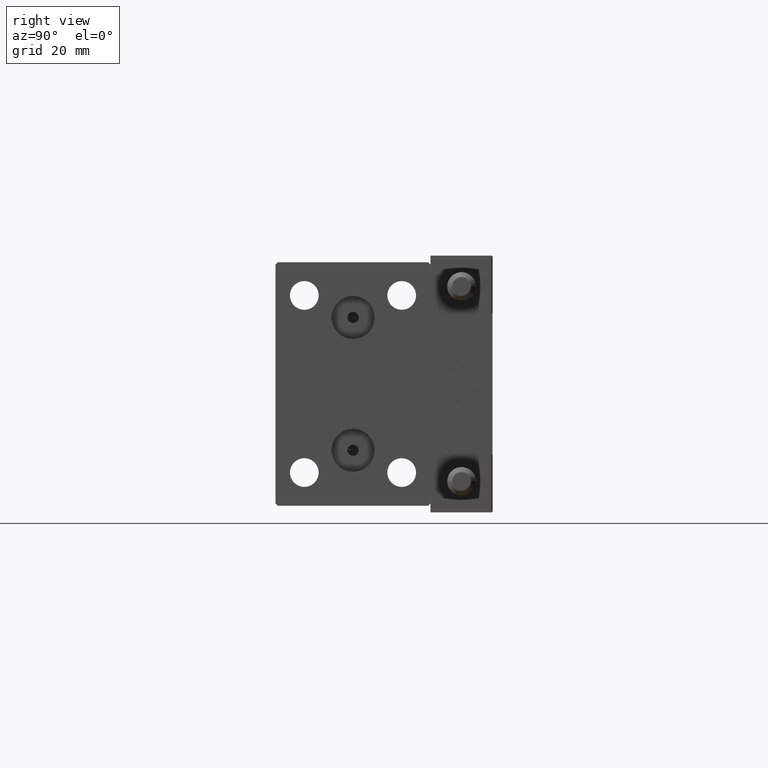
[diagram: clean part render]
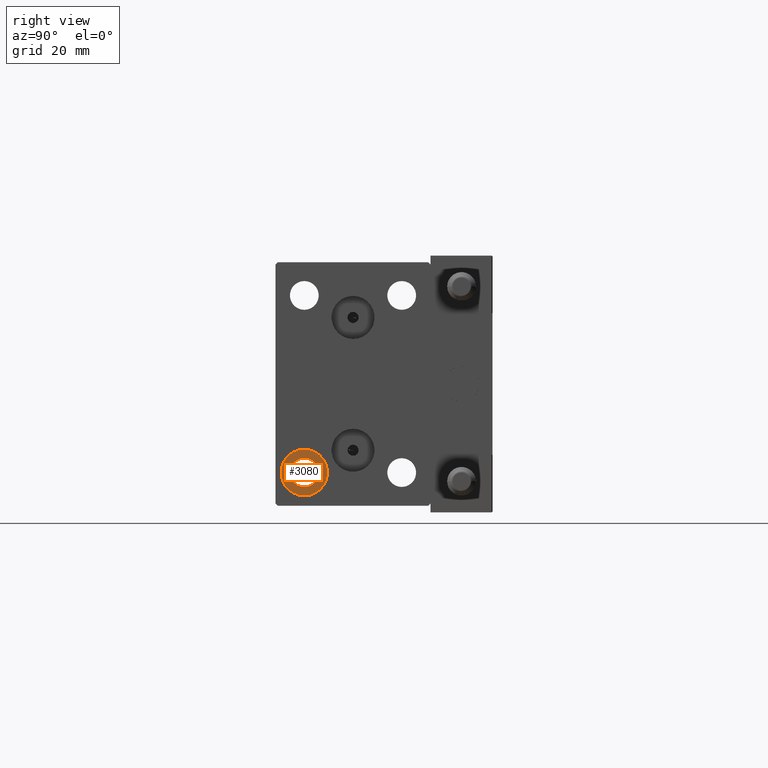
[diagram: same view with one face highlighted and labeled with its STEP entity id]
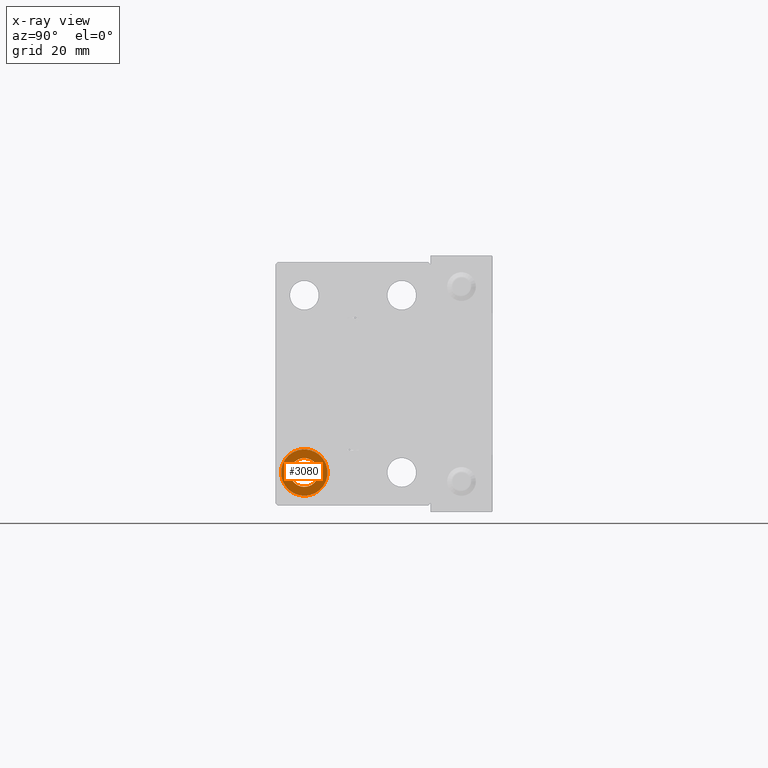
[diagram: x-ray of the same camera — body ghosted, the highlighted face saturated]
A machine part, right view. The second image highlights one B-rep face of the part: STEP entity #3080.
The next image is the same camera in x-ray: the body ghosted, the highlighted face saturated — about 0% of this face is hidden behind the body in this view.
In plain terms, the highlighted planar face has unit normal (1, 0, 0).
Its self-contained STEP definition (entity closure, byte-faithful):
#1016 = VERTEX_POINT ( 'NONE', #39724 ) ;
#1093 = CARTESIAN_POINT ( 'NONE',  ( 49.00000000000000000, -11.00000000000000355, -23.25000000000000000 ) ) ;
#3080 = ADVANCED_FACE ( 'NONE', ( #25425, #42501 ), #19011, .T. ) ;
#4328 = CARTESIAN_POINT ( 'NONE',  ( 49.00000000000000000, -11.00000000000000355, -16.75000000000000000 ) ) ;
#4848 = VERTEX_POINT ( 'NONE', #10594 ) ;
#5833 = CARTESIAN_POINT ( 'NONE',  ( 49.00000000000000000, -11.00000000000000355, -20.00000000000000000 ) ) ;
#5874 = EDGE_LOOP ( 'NONE', ( #13782, #13221 ) ) ;
#6592 = DIRECTION ( 'NONE',  ( 0.000000000000000000, 0.000000000000000000, -1.000000000000000000 ) ) ;
#7237 = DIRECTION ( 'NONE',  ( 1.000000000000000000, 0.000000000000000000, -0.000000000000000000 ) ) ;
#8002 = DIRECTION ( 'NONE',  ( 0.000000000000000000, 0.000000000000000000, 1.000000000000000000 ) ) ;
#8963 = AXIS2_PLACEMENT_3D ( 'NONE', #5833, #13496, #9412 ) ;
#9412 = DIRECTION ( 'NONE',  ( 0.000000000000000000, 0.000000000000000000, 1.000000000000000000 ) ) ;
#10414 = DIRECTION ( 'NONE',  ( -1.000000000000000000, -0.000000000000000000, -0.000000000000000000 ) ) ;
#10594 = CARTESIAN_POINT ( 'NONE',  ( 49.00000000000000000, -11.00000000000000355, -14.75000000000000000 ) ) ;
#10695 = CARTESIAN_POINT ( 'NONE',  ( 49.00000000000000000, -11.00000000000000355, -20.00000000000000000 ) ) ;
#12130 = EDGE_CURVE ( 'NONE', #34610, #20755, #22189, .T. ) ;
#12825 = AXIS2_PLACEMENT_3D ( 'NONE', #10695, #15033, #26288 ) ;
#13221 = ORIENTED_EDGE ( 'NONE', *, *, #25519, .T. ) ;
#13496 = DIRECTION ( 'NONE',  ( -1.000000000000000000, -0.000000000000000000, -0.000000000000000000 ) ) ;
#13782 = ORIENTED_EDGE ( 'NONE', *, *, #12130, .T. ) ;
#15033 = DIRECTION ( 'NONE',  ( -1.000000000000000000, -0.000000000000000000, -0.000000000000000000 ) ) ;
#18111 = CARTESIAN_POINT ( 'NONE',  ( 49.00000000000000000, -11.00000000000000355, -20.00000000000000000 ) ) ;
#19011 = PLANE ( 'NONE',  #44864 ) ;
#19386 = AXIS2_PLACEMENT_3D ( 'NONE', #19645, #35226, #31132 ) ;
#19645 = CARTESIAN_POINT ( 'NONE',  ( 49.00000000000000000, -11.00000000000000355, -20.00000000000000000 ) ) ;
#20391 = CIRCLE ( 'NONE', #8963, 5.250000000000000888 ) ;
#20755 = VERTEX_POINT ( 'NONE', #1093 ) ;
#22032 = EDGE_CURVE ( 'NONE', #1016, #4848, #37322, .T. ) ;
#22189 = CIRCLE ( 'NONE', #29538, 3.249999999999999556 ) ;
#25425 = FACE_OUTER_BOUND ( 'NONE', #31531, .T. ) ;
#25519 = EDGE_CURVE ( 'NONE', #20755, #34610, #46254, .T. ) ;
#26288 = DIRECTION ( 'NONE',  ( 0.000000000000000000, 0.000000000000000000, -1.000000000000000000 ) ) ;
#27663 = ORIENTED_EDGE ( 'NONE', *, *, #32166, .F. ) ;
#29538 = AXIS2_PLACEMENT_3D ( 'NONE', #18111, #10414, #6592 ) ;
#31132 = DIRECTION ( 'NONE',  ( 0.000000000000000000, 0.000000000000000000, 1.000000000000000000 ) ) ;
#31531 = EDGE_LOOP ( 'NONE', ( #38133, #27663 ) ) ;
#32166 = EDGE_CURVE ( 'NONE', #4848, #1016, #20391, .T. ) ;
#34610 = VERTEX_POINT ( 'NONE', #4328 ) ;
#35226 = DIRECTION ( 'NONE',  ( -1.000000000000000000, -0.000000000000000000, -0.000000000000000000 ) ) ;
#37322 = CIRCLE ( 'NONE', #19386, 5.250000000000000888 ) ;
#38133 = ORIENTED_EDGE ( 'NONE', *, *, #22032, .F. ) ;
#38160 = CARTESIAN_POINT ( 'NONE',  ( 49.00000000000000000, 0.000000000000000000, 0.000000000000000000 ) ) ;
#39724 = CARTESIAN_POINT ( 'NONE',  ( 49.00000000000000000, -11.00000000000000355, -25.25000000000000000 ) ) ;
#42501 = FACE_BOUND ( 'NONE', #5874, .T. ) ;
#44864 = AXIS2_PLACEMENT_3D ( 'NONE', #38160, #7237, #8002 ) ;
#46254 = CIRCLE ( 'NONE', #12825, 3.249999999999999556 ) ;